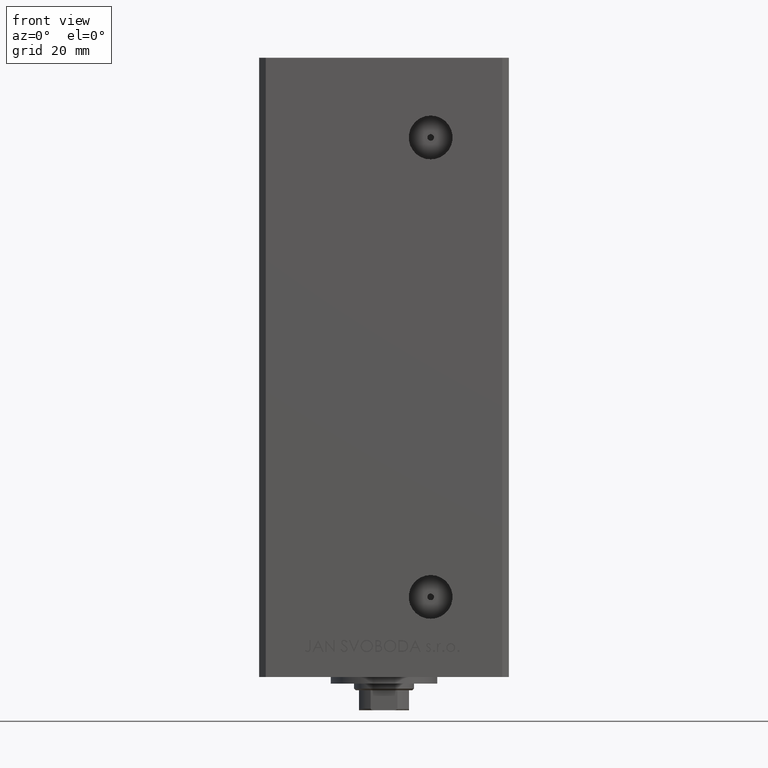
[diagram: clean part render]
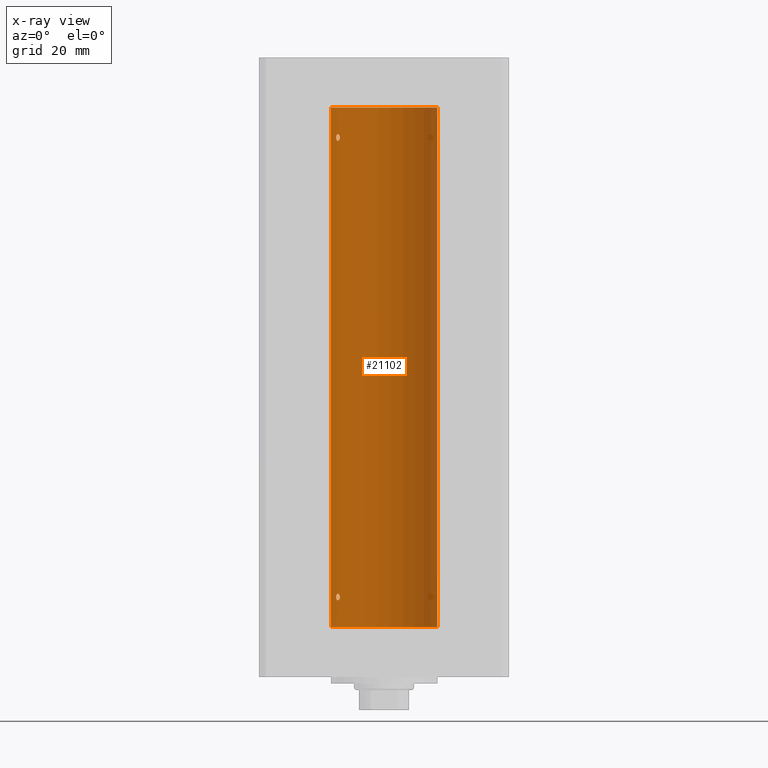
[diagram: x-ray — body ghosted, one internal face saturated and labeled with its STEP entity id]
A machine part, front view, then the same camera in x-ray: the body is ghosted and one INTERNAL B-rep face — a face not visible from any outside direction — is saturated and labeled: STEP entity #21102.
In plain terms, the highlighted cylindrical surface (partial cylindrical patch) has radius 16 mm, axis along (-0, -0, -1).
Its self-contained STEP definition (entity closure, byte-faithful):
#188 = ORIENTED_EDGE ( 'NONE', *, *, #25999, .F. ) ;
#1081 = EDGE_CURVE ( 'NONE', #46241, #13841, #22389, .T. ) ;
#1332 = CARTESIAN_POINT ( 'NONE',  ( -13.32457971225033866, 8.857769707964637362, 9.531999662746560631 ) ) ;
#1845 = CARTESIAN_POINT ( 'NONE',  ( -14.38749456993816800, 6.999999999999984013, 9.000000000000007105 ) ) ;
#1986 = CARTESIAN_POINT ( 'NONE',  ( 0.000000000000000000, 0.000000000000000000, 156.0000000000000000 ) ) ;
#2188 = VERTEX_POINT ( 'NONE', #41619 ) ;
#2196 = EDGE_LOOP ( 'NONE', ( #33308, #8696 ) ) ;
#2481 = CARTESIAN_POINT ( 'NONE',  ( -13.77582987033441064, 8.139210687602716376, 146.0021105458418447 ) ) ;
#2740 = CARTESIAN_POINT ( 'NONE',  ( -13.26838749541401263, 8.941532915076029653, 8.656217793921380022 ) ) ;
#2824 = CARTESIAN_POINT ( 'NONE',  ( -14.38749456993816800, 6.999999999999984013, 9.000000000000007105 ) ) ;
#2967 = ORIENTED_EDGE ( 'NONE', *, *, #3638, .T. ) ;
#2985 = CARTESIAN_POINT ( 'NONE',  ( -13.23400746336172418, 8.992294519018086518, 146.8578145590230122 ) ) ;
#2996 = CARTESIAN_POINT ( 'NONE',  ( -13.22875655532296335, 8.999999999999982236, 9.000000000000007105 ) ) ;
#3496 = CARTESIAN_POINT ( 'NONE',  ( -13.22875655532296513, 8.999999999999982236, 8.929565622361650412 ) ) ;
#3620 = CIRCLE ( 'NONE', #31657, 16.00000000000000000 ) ;
#3638 = EDGE_CURVE ( 'NONE', #14386, #26182, #3620, .T. ) ;
#4577 = DIRECTION ( 'NONE',  ( 1.000000000000000000, 0.000000000000000000, 0.000000000000000000 ) ) ;
#5042 = CARTESIAN_POINT ( 'NONE',  ( -14.11618354197461400, 7.533333301880476895, 147.8932076519334089 ) ) ;
#5329 = EDGE_CURVE ( 'NONE', #13841, #46241, #14329, .T. ) ;
#5490 = EDGE_CURVE ( 'NONE', #10205, #37500, #9517, .T. ) ;
#6092 = CARTESIAN_POINT ( 'NONE',  ( -13.24976519864029889, 8.969293778684560792, 9.281535226335167366 ) ) ;
#6246 = CARTESIAN_POINT ( 'NONE',  ( -13.70481462797717320, 8.258098555717507949, 146.0259974772911278 ) ) ;
#6504 = CARTESIAN_POINT ( 'NONE',  ( -13.56386909142669772, 8.487613976483638467, 146.1182242979960790 ) ) ;
#6516 = CARTESIAN_POINT ( 'NONE',  ( -13.98699950016873039, 7.770591669637105348, 8.018476816648488992 ) ) ;
#6598 = CARTESIAN_POINT ( 'NONE',  ( -14.17576283486775779, 7.420212263225971050, 9.825253034304363808 ) ) ;
#6750 = CARTESIAN_POINT ( 'NONE',  ( -14.31660136508398828, 7.144151923086062617, 146.4646217954444296 ) ) ;
#6872 = DIRECTION ( 'NONE',  ( -0.000000000000000000, -0.000000000000000000, -1.000000000000000000 ) ) ;
#7380 = FACE_BOUND ( 'NONE', #2196, .T. ) ;
#7567 = LINE ( 'NONE', #22876, #48881 ) ;
#8696 = ORIENTED_EDGE ( 'NONE', *, *, #5329, .F. ) ;
#9076 = CARTESIAN_POINT ( 'NONE',  ( -14.31660136508400072, 7.144151923086045741, 8.464621795444484675 ) ) ;
#9517 = B_SPLINE_CURVE_WITH_KNOTS ( 'NONE', 3,
 ( #36403, #46986, #47977, #24125, #13574, #16603, #17336, #39458, #47725, #5042, #42980, #39211, #12584, #43471, #39946, #28131 ),
 .UNSPECIFIED., .F., .F.,
 ( 4, 2, 2, 2, 2, 2, 2, 4 ),
 ( 0.003377672193071779884, 0.003799209865779893530, 0.004220747538488007176, 0.005063822883904185029, 0.005485360556612275257, 0.005906898229320365484, 0.006328435902028455712, 0.006749973574736545072 ),
 .UNSPECIFIED. ) ;
#9519 = CARTESIAN_POINT ( 'NONE',  ( -14.27547848986623080, 7.226527013162187707, 146.3525557301815354 ) ) ;
#9771 = CARTESIAN_POINT ( 'NONE',  ( -14.17528142432533755, 7.421143801852456257, 146.1739430735386804 ) ) ;
#10116 = CARTESIAN_POINT ( 'NONE',  ( -13.98878315975730224, 7.767347947480332415, 9.980546143261287639 ) ) ;
#10205 = VERTEX_POINT ( 'NONE', #38809 ) ;
#10529 = CARTESIAN_POINT ( 'NONE',  ( -14.38749456993815556, 6.999999999999997335, 146.8571474096353882 ) ) ;
#11009 = VERTEX_POINT ( 'NONE', #22263 ) ;
#12366 = CARTESIAN_POINT ( 'NONE',  ( 0.000000000000000000, 0.000000000000000000, 0.000000000000000000 ) ) ;
#12491 = DIRECTION ( 'NONE',  ( -0.000000000000000000, -0.000000000000000000, -1.000000000000000000 ) ) ;
#12584 = CARTESIAN_POINT ( 'NONE',  ( -14.31650799088418324, 7.144337649771909327, 147.5355226273736662 ) ) ;
#12848 = CARTESIAN_POINT ( 'NONE',  ( -14.38749456993816800, 6.999999999999984013, 9.000000000000007105 ) ) ;
#13574 = CARTESIAN_POINT ( 'NONE',  ( -13.37741691572086289, 8.778212469423007036, 147.6408828602271228 ) ) ;
#13841 = VERTEX_POINT ( 'NONE', #16538 ) ;
#14299 = CARTESIAN_POINT ( 'NONE',  ( -14.17528142432534288, 7.421143801852442934, 8.173943073538671555 ) ) ;
#14329 = B_SPLINE_CURVE_WITH_KNOTS ( 'NONE', 3,
 ( #28931, #32450, #6092, #1332, #18401, #41254, #45520, #37742, #10116, #32959, #6598, #48540, #44517, #41009, #25419, #2824 ),
 .UNSPECIFIED., .F., .F.,
 ( 4, 2, 2, 2, 2, 2, 2, 4 ),
 ( 0.003377672193071775547, 0.003799209865779873581, 0.004220747538487971615, 0.005063822883904167682, 0.005485360556612266583, 0.005906898229320366352, 0.006328435902028466120, 0.006749973574736565021 ),
 .UNSPECIFIED. ) ;
#14386 = VERTEX_POINT ( 'NONE', #41255 ) ;
#14799 = CARTESIAN_POINT ( 'NONE',  ( -13.49759407097375608, 8.592283911330213186, 8.184099152127679133 ) ) ;
#15295 = CARTESIAN_POINT ( 'NONE',  ( -14.11621438951178575, 7.533308783216997817, 8.106571071839523412 ) ) ;
#15740 = EDGE_LOOP ( 'NONE', ( #188, #32474 ) ) ;
#16538 = CARTESIAN_POINT ( 'NONE',  ( -13.22875655532296335, 8.999999999999982236, 9.000000000000007105 ) ) ;
#16603 = CARTESIAN_POINT ( 'NONE',  ( -13.55800260393082901, 8.498809056167511145, 147.9036434462101397 ) ) ;
#17336 = CARTESIAN_POINT ( 'NONE',  ( -13.70792461986390798, 8.256614593260307444, 147.9966215356422765 ) ) ;
#17552 = CARTESIAN_POINT ( 'NONE',  ( -13.91838063522421187, 7.892966471903947401, 145.9981483133087181 ) ) ;
#18177 = CARTESIAN_POINT ( 'NONE',  ( 0.000000000000000000, 0.000000000000000000, 156.0000000000000000 ) ) ;
#18303 = CARTESIAN_POINT ( 'NONE',  ( -13.22875655532295802, 8.999999999999996447, 147.0000000000000000 ) ) ;
#18355 = CARTESIAN_POINT ( 'NONE',  ( -14.38749456993815912, 6.999999999999998224, 147.0000000000000000 ) ) ;
#18401 = CARTESIAN_POINT ( 'NONE',  ( -13.37741691572086467, 8.778212469422998154, 9.640882860227108608 ) ) ;
#20554 = ORIENTED_EDGE ( 'NONE', *, *, #22534, .T. ) ;
#21102 = ADVANCED_FACE ( 'NONE', ( #22184, #7380, #25944 ), #30467, .F. ) ;
#21314 = CARTESIAN_POINT ( 'NONE',  ( -14.11621438951178398, 7.533308783217012028, 146.1065710718395110 ) ) ;
#21626 = AXIS2_PLACEMENT_3D ( 'NONE', #12366, #24387, #4577 ) ;
#21819 = CARTESIAN_POINT ( 'NONE',  ( -13.25390108270225298, 8.962947079338393408, 146.7214357623584817 ) ) ;
#21830 = CARTESIAN_POINT ( 'NONE',  ( -13.25390108270226364, 8.962947079338375644, 8.721435762358465738 ) ) ;
#22184 = FACE_OUTER_BOUND ( 'NONE', #39687, .T. ) ;
#22263 = CARTESIAN_POINT ( 'NONE',  ( -16.00000000000000000, 0.000000000000000000, 0.000000000000000000 ) ) ;
#22389 = B_SPLINE_CURVE_WITH_KNOTS ( 'NONE', 3,
 ( #12848, #32174, #43482, #9076, #34364, #14299, #15295, #6516, #25589, #26088, #22817, #41423, #14799, #29601, #40921, #2740, #21830, #26582, #3496, #2996 ),
 .UNSPECIFIED., .F., .F.,
 ( 4, 2, 2, 2, 2, 2, 2, 2, 2, 4 ),
 ( 0.000000000000000000, 0.0004222090241339719434, 0.0008444180482679438868, 0.001266627072401915830, 0.001688836096535887774, 0.002111045120669859717, 0.002533254144803831660, 0.002955463168937803604, 0.003166567681004789359, 0.003377672193071775547 ),
 .UNSPECIFIED. ) ;
#22534 = EDGE_CURVE ( 'NONE', #26182, #11009, #7567, .T. ) ;
#22817 = CARTESIAN_POINT ( 'NONE',  ( -13.70481462797718386, 8.258098555717490186, 8.025997477291141990 ) ) ;
#22876 = CARTESIAN_POINT ( 'NONE',  ( -16.00000000000000000, 0.000000000000000000, 156.0000000000000000 ) ) ;
#24125 = CARTESIAN_POINT ( 'NONE',  ( -13.32457971225032267, 8.857769707964649797, 147.5319996627465571 ) ) ;
#24387 = DIRECTION ( 'NONE',  ( -0.000000000000000000, 0.000000000000000000, 1.000000000000000000 ) ) ;
#24516 = CARTESIAN_POINT ( 'NONE',  ( -16.00000000000000000, 0.000000000000000000, 156.0000000000000000 ) ) ;
#24829 = CARTESIAN_POINT ( 'NONE',  ( -13.32426099938365383, 8.858246960865843178, 146.4688748775329827 ) ) ;
#25320 = CARTESIAN_POINT ( 'NONE',  ( -14.37250282441143945, 7.031013007322937547, 146.7168569960372793 ) ) ;
#25419 = CARTESIAN_POINT ( 'NONE',  ( -14.38749456993816978, 6.999999999999985789, 9.142625441524216967 ) ) ;
#25589 = CARTESIAN_POINT ( 'NONE',  ( -13.91838063522421542, 7.892966471903923420, 7.998148313308686141 ) ) ;
#25944 = FACE_BOUND ( 'NONE', #15740, .T. ) ;
#25999 = EDGE_CURVE ( 'NONE', #37500, #10205, #39954, .T. ) ;
#26075 = EDGE_CURVE ( 'NONE', #14386, #2188, #45668, .T. ) ;
#26088 = CARTESIAN_POINT ( 'NONE',  ( -13.77582987033441952, 8.139210687602698613, 8.002110545841825129 ) ) ;
#26182 = VERTEX_POINT ( 'NONE', #24516 ) ;
#26582 = CARTESIAN_POINT ( 'NONE',  ( -13.23400746336173484, 8.992294519018072307, 8.857814559023026391 ) ) ;
#26789 = ORIENTED_EDGE ( 'NONE', *, *, #26075, .F. ) ;
#28131 = CARTESIAN_POINT ( 'NONE',  ( -14.38749456993815912, 6.999999999999998224, 147.0000000000000000 ) ) ;
#28931 = CARTESIAN_POINT ( 'NONE',  ( -13.22875655532296335, 8.999999999999982236, 9.000000000000007105 ) ) ;
#29601 = CARTESIAN_POINT ( 'NONE',  ( -13.37674940693423054, 8.779234808442856419, 8.360244157126787812 ) ) ;
#30467 = CYLINDRICAL_SURFACE ( 'NONE', #34408, 16.00000000000000000 ) ;
#31657 = AXIS2_PLACEMENT_3D ( 'NONE', #1986, #43690, #47953 ) ;
#32174 = CARTESIAN_POINT ( 'NONE',  ( -14.38749456993816445, 6.999999999999982236, 8.857147409635420132 ) ) ;
#32450 = CARTESIAN_POINT ( 'NONE',  ( -13.22875655532296335, 8.999999999999978684, 9.140644760917750133 ) ) ;
#32474 = ORIENTED_EDGE ( 'NONE', *, *, #5490, .F. ) ;
#32959 = CARTESIAN_POINT ( 'NONE',  ( -14.11618354197462644, 7.533333301880464461, 9.893207651933423108 ) ) ;
#33308 = ORIENTED_EDGE ( 'NONE', *, *, #1081, .F. ) ;
#33737 = DIRECTION ( 'NONE',  ( -1.000000000000000000, 0.000000000000000000, 0.000000000000000000 ) ) ;
#34364 = CARTESIAN_POINT ( 'NONE',  ( -14.27547848986623258, 7.226527013162171720, 8.352555730181538962 ) ) ;
#34408 = AXIS2_PLACEMENT_3D ( 'NONE', #18177, #6872, #33737 ) ;
#36403 = CARTESIAN_POINT ( 'NONE',  ( -13.22875655532295802, 8.999999999999996447, 147.0000000000000000 ) ) ;
#37132 = CARTESIAN_POINT ( 'NONE',  ( -13.26838749541400730, 8.941532915076043864, 146.6562177939213427 ) ) ;
#37390 = CARTESIAN_POINT ( 'NONE',  ( -13.37674940693422698, 8.779234808442867077, 146.3602441571268287 ) ) ;
#37500 = VERTEX_POINT ( 'NONE', #18355 ) ;
#37646 = VECTOR ( 'NONE', #12491, 1000.000000000000000 ) ;
#37742 = CARTESIAN_POINT ( 'NONE',  ( -13.91892506969883669, 7.891973478508838902, 10.00155212263245375 ) ) ;
#38207 = DIRECTION ( 'NONE',  ( -0.000000000000000000, -0.000000000000000000, -1.000000000000000000 ) ) ;
#38809 = CARTESIAN_POINT ( 'NONE',  ( -13.22875655532295802, 8.999999999999996447, 147.0000000000000000 ) ) ;
#39211 = CARTESIAN_POINT ( 'NONE',  ( -14.27521483392929369, 7.227035590538639198, 147.6478598706881940 ) ) ;
#39458 = CARTESIAN_POINT ( 'NONE',  ( -13.91892506969882426, 7.891973478508846895, 148.0015521226324324 ) ) ;
#39687 = EDGE_LOOP ( 'NONE', ( #26789, #2967, #20554, #47603 ) ) ;
#39946 = CARTESIAN_POINT ( 'NONE',  ( -14.38749456993816089, 6.999999999999999112, 147.1426254415242454 ) ) ;
#39954 = B_SPLINE_CURVE_WITH_KNOTS ( 'NONE', 3,
 ( #44181, #10529, #25320, #6750, #9519, #9771, #21314, #41158, #17552, #2481, #6246, #6504, #44672, #37390, #24829, #37132, #21819, #2985, #44420, #18303 ),
 .UNSPECIFIED., .F., .F.,
 ( 4, 2, 2, 2, 2, 2, 2, 2, 2, 4 ),
 ( 0.000000000000000000, 0.0004222090241339814844, 0.0008444180482679629687, 0.001266627072401944453, 0.001688836096535925937, 0.002111045120669907422, 0.002533254144803888906, 0.002955463168937870391, 0.003166567681004825354, 0.003377672193071779884 ),
 .UNSPECIFIED. ) ;
#40921 = CARTESIAN_POINT ( 'NONE',  ( -13.32426099938365915, 8.858246960865836073, 8.468874877532975631 ) ) ;
#41009 = CARTESIAN_POINT ( 'NONE',  ( -14.37227256866306746, 7.031482256185695334, 9.284457240976488279 ) ) ;
#41158 = CARTESIAN_POINT ( 'NONE',  ( -13.98699950016872506, 7.770591669637118670, 146.0184768166485298 ) ) ;
#41254 = CARTESIAN_POINT ( 'NONE',  ( -13.55800260393082901, 8.498809056167502263, 9.903643446210180556 ) ) ;
#41255 = CARTESIAN_POINT ( 'NONE',  ( 16.00000000000000000, 1.959434878635765131E-15, 156.0000000000000000 ) ) ;
#41423 = CARTESIAN_POINT ( 'NONE',  ( -13.56386909142670660, 8.487613976483618927, 8.118224297996086136 ) ) ;
#41619 = CARTESIAN_POINT ( 'NONE',  ( 16.00000000000000000, 1.959434878635765131E-15, 0.000000000000000000 ) ) ;
#42980 = CARTESIAN_POINT ( 'NONE',  ( -14.17576283486774713, 7.420212263225987925, 147.8252530343043247 ) ) ;
#43294 = CIRCLE ( 'NONE', #21626, 16.00000000000000000 ) ;
#43471 = CARTESIAN_POINT ( 'NONE',  ( -14.37227256866306213, 7.031482256185710433, 147.2844572409764794 ) ) ;
#43482 = CARTESIAN_POINT ( 'NONE',  ( -14.37250282441144655, 7.031013007322923336, 8.716856996037272154 ) ) ;
#43690 = DIRECTION ( 'NONE',  ( -0.000000000000000000, 0.000000000000000000, 1.000000000000000000 ) ) ;
#44181 = CARTESIAN_POINT ( 'NONE',  ( -14.38749456993815912, 6.999999999999998224, 147.0000000000000000 ) ) ;
#44420 = CARTESIAN_POINT ( 'NONE',  ( -13.22875655532295802, 8.999999999999998224, 146.9295656223616504 ) ) ;
#44517 = CARTESIAN_POINT ( 'NONE',  ( -14.31650799088419213, 7.144337649771898668, 9.535522627373698157 ) ) ;
#44672 = CARTESIAN_POINT ( 'NONE',  ( -13.49759407097375075, 8.592283911330225621, 146.1840991521276862 ) ) ;
#45520 = CARTESIAN_POINT ( 'NONE',  ( -13.70792461986391864, 8.256614593260295010, 9.996621535642280065 ) ) ;
#45668 = LINE ( 'NONE', #49448, #37646 ) ;
#46241 = VERTEX_POINT ( 'NONE', #1845 ) ;
#46986 = CARTESIAN_POINT ( 'NONE',  ( -13.22875655532296157, 8.999999999999998224, 147.1406447609177519 ) ) ;
#47452 = EDGE_CURVE ( 'NONE', #2188, #11009, #43294, .T. ) ;
#47603 = ORIENTED_EDGE ( 'NONE', *, *, #47452, .F. ) ;
#47725 = CARTESIAN_POINT ( 'NONE',  ( -13.98878315975728981, 7.767347947480344850, 147.9805461432612503 ) ) ;
#47953 = DIRECTION ( 'NONE',  ( 1.000000000000000000, 0.000000000000000000, 0.000000000000000000 ) ) ;
#47977 = CARTESIAN_POINT ( 'NONE',  ( -13.24976519864029179, 8.969293778684573226, 147.2815352263351656 ) ) ;
#48540 = CARTESIAN_POINT ( 'NONE',  ( -14.27521483392929902, 7.227035590538620546, 9.647859870688199280 ) ) ;
#48881 = VECTOR ( 'NONE', #38207, 1000.000000000000000 ) ;
#49448 = CARTESIAN_POINT ( 'NONE',  ( 16.00000000000000000, 1.959434878635765131E-15, 156.0000000000000000 ) ) ;